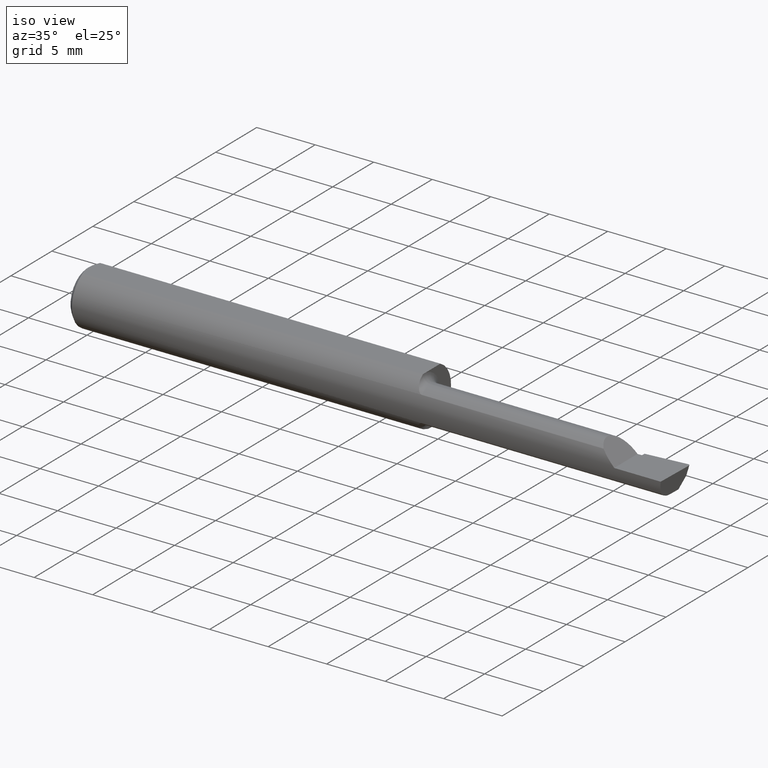
[diagram: clean part render]
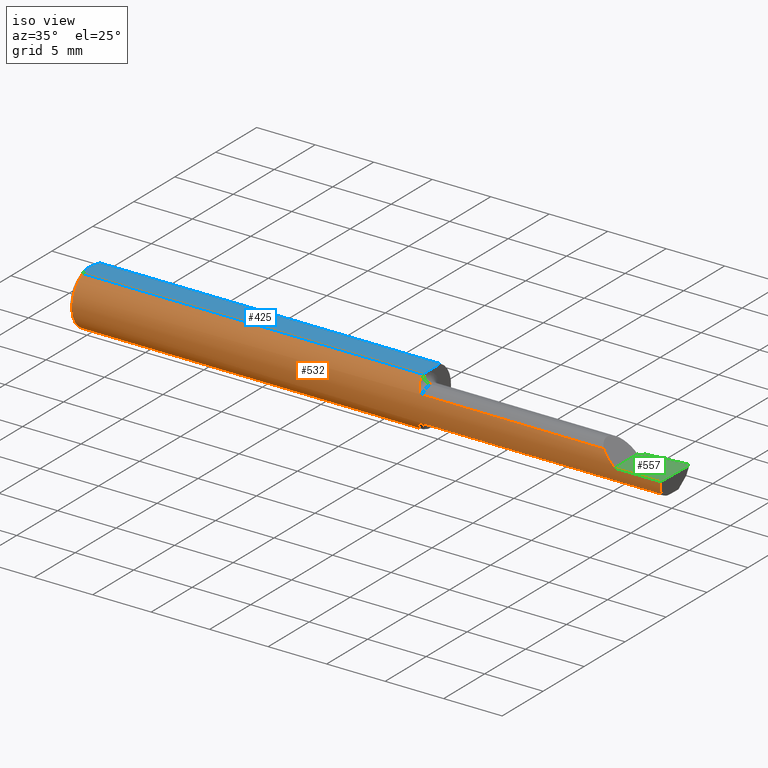
[diagram: same view with three faces highlighted in distinct colors, each labeled with its STEP entity id]
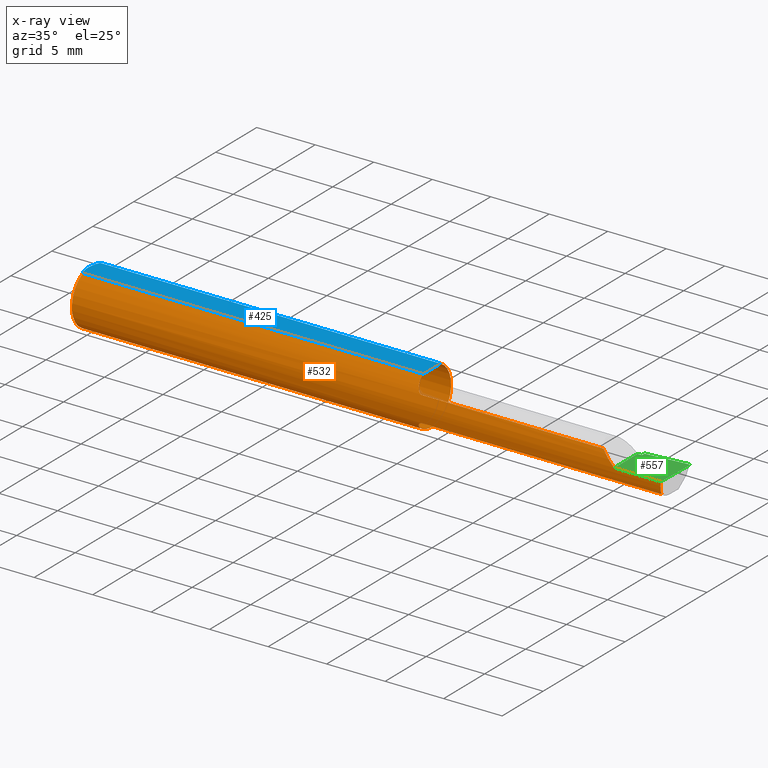
[diagram: x-ray of the same camera — body ghosted, the three highlighted faces saturated]
A machine part, iso view with three faces highlighted in distinct colors.
The next image is the same camera in x-ray (body ghosted, the three faces saturated) — at least one of them is partly hidden behind the body in this view.
Their STEP definitions:

[orange] entity #532 — the highlighted cylindrical surface (edge-blend (fillet) strip) has radius 2.3774 mm, axis along (-1, -0, -0).
#1 = CARTESIAN_POINT ( 'NONE',  ( 1.160121283746728515, -0.04659318327468391085, -0.08137765652544186323 ) ) ;
#4 = CARTESIAN_POINT ( 'NONE',  ( 1.160020127471513174, -0.04150000000000000216, -0.08389702020930184245 ) ) ;
#6 = AXIS2_PLACEMENT_3D ( 'NONE', #649, #427, #187 ) ;
#8 = ORIENTED_EDGE ( 'NONE', *, *, #477, .T. ) ;
#11 = EDGE_CURVE ( 'NONE', #172, #718, #533, .T. ) ;
#15 = CARTESIAN_POINT ( 'NONE',  ( 1.169277238843646760, -0.07518688180277835476, 0.05595855205935822835 ) ) ;
#17 = CARTESIAN_POINT ( 'NONE',  ( 1.173723886093771984, -0.07921817987516428794, 0.04991299092638442486 ) ) ;
#18 = CARTESIAN_POINT ( 'NONE',  ( 0.01499999999999999598, 0.0000000000000000000, -0.09360000000000001652 ) ) ;
#22 = CARTESIAN_POINT ( 'NONE',  ( 1.175413575230843666, -0.08042664989327168168, 0.04791921015131045403 ) ) ;
#23 = CARTESIAN_POINT ( 'NONE',  ( 1.162429122971394557, -0.06066239981301110168, 0.07149394324226560071 ) ) ;
#25 = CARTESIAN_POINT ( 'NONE',  ( 1.163721006865968688, -0.06478644025721981559, 0.06776242552087052839 ) ) ;
#27 = CARTESIAN_POINT ( 'NONE',  ( 1.167169981118042932, -0.07201923175909119568, 0.06001882546754930964 ) ) ;
#30 = VECTOR ( 'NONE', #445, 39.37007874015748143 ) ;
#44 = VECTOR ( 'NONE', #457, 39.37007874015748143 ) ;
#60 = EDGE_CURVE ( 'NONE', #284, #654, #456, .T. ) ;
#62 = DIRECTION ( 'NONE',  ( 1.000000000000000000, 0.0000000000000000000, 0.0000000000000000000 ) ) ;
#67 = CARTESIAN_POINT ( 'NONE',  ( 1.160000000000000142, -0.03946024096385560009, -0.08487549341873927566 ) ) ;
#74 = CARTESIAN_POINT ( 'NONE',  ( 5.659797890829555466E-31, -0.09359999999999998876, 1.030335658007946046E-15 ) ) ;
#91 = CARTESIAN_POINT ( 'NONE',  ( 1.991365359011875169, -0.08307469879518081246, -0.04312255117789283443 ) ) ;
#95 = DIRECTION ( 'NONE',  ( 0.0000000000000000000, 0.0000000000000000000, 1.000000000000000000 ) ) ;
#96 = LINE ( 'NONE', #200, #30 ) ;
#98 = CARTESIAN_POINT ( 'NONE',  ( 1.520000000000000240, -0.08307469879518081246, 0.04312255117789283443 ) ) ;
#99 = CARTESIAN_POINT ( 'NONE',  ( 0.01499999999999999944, -0.04209513035969835587, 0.08360000000000000764 ) ) ;
#108 = CARTESIAN_POINT ( 'NONE',  ( 1.185000000000000053, -0.08307469879518070144, -0.04312255117789289688 ) ) ;
#118 = EDGE_CURVE ( 'NONE', #231, #527, #681, .T. ) ;
#125 = CARTESIAN_POINT ( 'NONE',  ( 1.182123707331576901, -0.08307469879541805324, 0.04312255117743588051 ) ) ;
#127 = DIRECTION ( 'NONE',  ( -1.000000000000000000, -0.0000000000000000000, -0.0000000000000000000 ) ) ;
#131 = VERTEX_POINT ( 'NONE', #147 ) ;
#135 = CARTESIAN_POINT ( 'NONE',  ( 1.163605992736884476, -0.06448586599545322318, -0.06805619079784644421 ) ) ;
#136 = CARTESIAN_POINT ( 'NONE',  ( 1.992827658777091893, -0.09002356847881788637, -0.02973569812382164182 ) ) ;
#147 = CARTESIAN_POINT ( 'NONE',  ( 1.996386342823452065, -0.09360000000000009979, -6.634435288474564624E-17 ) ) ;
#154 = CARTESIAN_POINT ( 'NONE',  ( 1.182100790213033825, -0.08307469879518074307, -0.04312255117789293851 ) ) ;
#172 = VERTEX_POINT ( 'NONE', #446 ) ;
#175 = CARTESIAN_POINT ( 'NONE',  ( 1.185000000000000053, -0.08307469879518036837, 0.04312255117789319525 ) ) ;
#180 = FACE_OUTER_BOUND ( 'NONE', #433, .T. ) ;
#181 = EDGE_CURVE ( 'NONE', #729, #284, #400, .T. ) ;
#185 = CARTESIAN_POINT ( 'NONE',  ( 1.160033712670299977, -0.04209513036081732190, 0.08360000000000000764 ) ) ;
#187 = DIRECTION ( 'NONE',  ( 0.0000000000000000000, 0.0000000000000000000, -1.000000000000000000 ) ) ;
#190 = AXIS2_PLACEMENT_3D ( 'NONE', #256, #253, #193 ) ;
#193 = DIRECTION ( 'NONE',  ( 0.0000000000000000000, 0.0000000000000000000, 1.000000000000000000 ) ) ;
#196 = CARTESIAN_POINT ( 'NONE',  ( 1.167076397983111580, -0.07187891021191479546, -0.06019546731975692483 ) ) ;
#199 = CARTESIAN_POINT ( 'NONE',  ( 0.0000000000000000000, -0.04209513035969835587, 0.08360000000000000764 ) ) ;
#200 = CARTESIAN_POINT ( 'NONE',  ( 0.0000000000000000000, 0.04209513035969837669, 0.08360000000000000764 ) ) ;
#206 = CARTESIAN_POINT ( 'NONE',  ( 1.179498465877714120, -0.08233174416856384181, -0.04456779206614402966 ) ) ;
#207 = CARTESIAN_POINT ( 'NONE',  ( 1.840000000000000080, -0.09360000000000005815, 1.959434878635762025E-17 ) ) ;
#211 = ORIENTED_EDGE ( 'NONE', *, *, #388, .T. ) ;
#222 = CARTESIAN_POINT ( 'NONE',  ( 1.796877448822106649, -0.08307469879518082634, 0.04312255117789279973 ) ) ;
#231 = VERTEX_POINT ( 'NONE', #636 ) ;
#236 = CARTESIAN_POINT ( 'NONE',  ( 1.840000000000000080, -0.09360000000000005815, 1.959434878635762025E-17 ) ) ;
#253 = DIRECTION ( 'NONE',  ( -1.000000000000000000, -0.0000000000000000000, -0.0000000000000000000 ) ) ;
#256 = CARTESIAN_POINT ( 'NONE',  ( 0.0000000000000000000, 0.0000000000000000000, 0.0000000000000000000 ) ) ;
#262 = CARTESIAN_POINT ( 'NONE',  ( 1.169237437666585722, -0.07513599091569005128, -0.05602756047418846336 ) ) ;
#284 = VERTEX_POINT ( 'NONE', #687 ) ;
#302 = CARTESIAN_POINT ( 'NONE',  ( 0.01499999999999999598, 0.0000000000000000000, 0.0000000000000000000 ) ) ;
#304 = EDGE_CURVE ( 'NONE', #654, #610, #702, .T. ) ;
#307 = DIRECTION ( 'NONE',  ( -1.000000000000000000, -0.0000000000000000000, -0.0000000000000000000 ) ) ;
#311 = CARTESIAN_POINT ( 'NONE',  ( 1.160604804002113077, -0.05145819953596708629, -0.07838465384289883264 ) ) ;
#317 = CARTESIAN_POINT ( 'NONE',  ( 1.173672693420809487, -0.07917899622880043842, -0.04997532113045963925 ) ) ;
#319 = CARTESIAN_POINT ( 'NONE',  ( 0.01499999999999999598, 0.0000000000000000000, 0.0000000000000000000 ) ) ;
#323 = VERTEX_POINT ( 'NONE', #99 ) ;
#343 = EDGE_CURVE ( 'NONE', #527, #323, #578, .T. ) ;
#344 = CARTESIAN_POINT ( 'NONE',  ( 1.160163936266329632, -0.04714148439379606259, 0.08105900800344767454 ) ) ;
#359 = DIRECTION ( 'NONE',  ( -1.000000000000000000, -0.0000000000000000000, -0.0000000000000000000 ) ) ;
#363 =( BOUNDED_CURVE ( )  B_SPLINE_CURVE ( 3, ( #560, #136, #504, #591 ),
 .UNSPECIFIED., .F., .T. ) 
 B_SPLINE_CURVE_WITH_KNOTS ( ( 4, 4 ),
 ( 0.8819507499627845526, 1.360746882514780376 ),
 .UNSPECIFIED. ) 
 CURVE ( )  GEOMETRIC_REPRESENTATION_ITEM ( )  RATIONAL_B_SPLINE_CURVE ( ( 1.000000000000000000, 0.9809872534005956712, 0.9809872534005956712, 1.000000000000000000 ) ) 
 REPRESENTATION_ITEM ( '' )  );
#379 = VECTOR ( 'NONE', #62, 39.37007874015748143 ) ;
#386 = DIRECTION ( 'NONE',  ( -1.000000000000000000, -0.0000000000000000000, -0.0000000000000000000 ) ) ;
#388 = EDGE_CURVE ( 'NONE', #525, #718, #530, .T. ) ;
#389 = DIRECTION ( 'NONE',  ( 0.0000000000000000000, 0.0000000000000000000, 1.000000000000000000 ) ) ;
#397 = ORIENTED_EDGE ( 'NONE', *, *, #564, .T. ) ;
#398 = ORIENTED_EDGE ( 'NONE', *, *, #343, .F. ) ;
#400 = LINE ( 'NONE', #451, #44 ) ;
#413 = CARTESIAN_POINT ( 'NONE',  ( 1.160661035553280040, -0.05185656404764086430, 0.07811662714540883179 ) ) ;
#418 = AXIS2_PLACEMENT_3D ( 'NONE', #302, #307, #95 ) ;
#427 = DIRECTION ( 'NONE',  ( 1.000000000000000000, 0.0000000000000000000, 0.0000000000000000000 ) ) ;
#433 = EDGE_LOOP ( 'NONE', ( #475, #397, #580, #211, #442, #501, #673, #398, #539, #8, #554, #638, #617 ) ) ;
#438 = CARTESIAN_POINT ( 'NONE',  ( 1.175354605856553825, -0.08039319987159056213, -0.04797642756495511945 ) ) ;
#442 = ORIENTED_EDGE ( 'NONE', *, *, #11, .F. ) ;
#445 = DIRECTION ( 'NONE',  ( 1.000000000000000000, 0.0000000000000000000, 0.0000000000000000000 ) ) ;
#446 = CARTESIAN_POINT ( 'NONE',  ( 1.185000000000000053, -0.08307469879518036837, 0.04312255117789319525 ) ) ;
#448 = VECTOR ( 'NONE', #359, 39.37007874015748143 ) ;
#451 = CARTESIAN_POINT ( 'NONE',  ( 1.520000000000000240, -0.08307469879518081246, -0.04312255117789283443 ) ) ;
#452 = CARTESIAN_POINT ( 'NONE',  ( 1.160020127471513174, -0.04150000000000000216, -0.08389702020930184245 ) ) ;
#456 = B_SPLINE_CURVE_WITH_KNOTS ( 'NONE', 3,
 ( #108, #154, #206, #438, #317, #262, #196, #135, #521, #311, #1, #4 ),
 .UNSPECIFIED., .F., .F.,
 ( 4, 2, 2, 2, 2, 4 ),
 ( 1.963546462201886234E-07, 0.0002171101490734176048, 0.0004340239435006150535, 0.0008678515323550098966, 0.001301679121209404740, 0.001735506710063799583 ),
 .UNSPECIFIED. ) ;
#457 = DIRECTION ( 'NONE',  ( -1.000000000000000000, -0.0000000000000000000, -0.0000000000000000000 ) ) ;
#475 = ORIENTED_EDGE ( 'NONE', *, *, #181, .F. ) ;
#476 = VERTEX_POINT ( 'NONE', #716 ) ;
#477 = EDGE_CURVE ( 'NONE', #231, #476, #96, .T. ) ;
#487 = CARTESIAN_POINT ( 'NONE',  ( 1.160020127471513174, -0.04150000000000000216, -0.08389702020930184245 ) ) ;
#491 = CYLINDRICAL_SURFACE ( 'NONE', #190, 0.09360000000000001652 ) ;
#501 = ORIENTED_EDGE ( 'NONE', *, *, #592, .F. ) ;
#504 = CARTESIAN_POINT ( 'NONE',  ( 1.994533757673610408, -0.09359999999999998876, -0.01508292493422506465 ) ) ;
#518 = CARTESIAN_POINT ( 'NONE',  ( 1.160000000000000142, -0.03946024096385560009, -0.08487549341873927566 ) ) ;
#521 = CARTESIAN_POINT ( 'NONE',  ( 1.162355770679724287, -0.06040702343486030468, -0.07171535245186147489 ) ) ;
#525 = VERTEX_POINT ( 'NONE', #236 ) ;
#527 = VERTEX_POINT ( 'NONE', #18 ) ;
#529 = VECTOR ( 'NONE', #127, 39.37007874015748143 ) ;
#530 =( BOUNDED_CURVE ( )  B_SPLINE_CURVE ( 3, ( #207, #599, #725, #658 ),
 .UNSPECIFIED., .F., .T. ) 
 B_SPLINE_CURVE_WITH_KNOTS ( ( 4, 4 ),
 ( 4.712388980384689674, 5.191185112936686608 ),
 .UNSPECIFIED. ) 
 CURVE ( )  GEOMETRIC_REPRESENTATION_ITEM ( )  RATIONAL_B_SPLINE_CURVE ( ( 1.000000000000000000, 0.9809872534005956712, 0.9809872534005956712, 1.000000000000000000 ) ) 
 REPRESENTATION_ITEM ( '' )  );
#532 = ADVANCED_FACE ( 'NONE', ( #180 ), #491, .T. ) ;
#533 = LINE ( 'NONE', #98, #379 ) ;
#539 = ORIENTED_EDGE ( 'NONE', *, *, #118, .F. ) ;
#546 = CARTESIAN_POINT ( 'NONE',  ( 1.179521451227074413, -0.08233651528524262020, 0.04455777109846686956 ) ) ;
#554 = ORIENTED_EDGE ( 'NONE', *, *, #678, .F. ) ;
#560 = CARTESIAN_POINT ( 'NONE',  ( 1.991365359011875169, -0.08307469879518081246, -0.04312255117789283443 ) ) ;
#564 = EDGE_CURVE ( 'NONE', #729, #131, #363, .T. ) ;
#575 = CARTESIAN_POINT ( 'NONE',  ( 1.160000000000000142, -0.04014498638740782860, -0.08455714216888012003 ) ) ;
#578 = CIRCLE ( 'NONE', #418, 0.09360000000000001652 ) ;
#580 = ORIENTED_EDGE ( 'NONE', *, *, #651, .T. ) ;
#591 = CARTESIAN_POINT ( 'NONE',  ( 1.996386342823452065, -0.09360000000000009979, -6.634435288474564624E-17 ) ) ;
#592 = EDGE_CURVE ( 'NONE', #705, #172, #593, .T. ) ;
#593 = B_SPLINE_CURVE_WITH_KNOTS ( 'NONE', 3,
 ( #598, #344, #413, #23, #25, #27, #15, #17, #22, #546, #125, #175 ),
 .UNSPECIFIED., .F., .F.,
 ( 4, 2, 2, 2, 2, 4 ),
 ( 4.385794399157352903E-07, 0.0004249653867977901621, 0.0008494921941556646131, 0.001274019001513539010, 0.001486282405192478756, 0.001698545808871418502 ),
 .UNSPECIFIED. ) ;
#598 = CARTESIAN_POINT ( 'NONE',  ( 1.160033712670299977, -0.04209513036081732190, 0.08360000000000000764 ) ) ;
#599 = CARTESIAN_POINT ( 'NONE',  ( 1.824917075065774830, -0.09360000000000001652, 0.01508292493422499526 ) ) ;
#610 = VERTEX_POINT ( 'NONE', #67 ) ;
#617 = ORIENTED_EDGE ( 'NONE', *, *, #60, .F. ) ;
#627 = CIRCLE ( 'NONE', #6, 0.09360000000000001652 ) ;
#636 = CARTESIAN_POINT ( 'NONE',  ( 0.01499999999999999598, 0.04209513035969837669, 0.08360000000000000764 ) ) ;
#638 = ORIENTED_EDGE ( 'NONE', *, *, #304, .F. ) ;
#644 = LINE ( 'NONE', #74, #448 ) ;
#649 = CARTESIAN_POINT ( 'NONE',  ( 1.160000000000000142, 0.0000000000000000000, 0.0000000000000000000 ) ) ;
#651 = EDGE_CURVE ( 'NONE', #131, #525, #644, .T. ) ;
#654 = VERTEX_POINT ( 'NONE', #487 ) ;
#658 = CARTESIAN_POINT ( 'NONE',  ( 1.796877448822106649, -0.08307469879518082634, 0.04312255117789279973 ) ) ;
#673 = ORIENTED_EDGE ( 'NONE', *, *, #723, .T. ) ;
#678 = EDGE_CURVE ( 'NONE', #610, #476, #627, .T. ) ;
#680 = LINE ( 'NONE', #199, #529 ) ;
#681 = CIRCLE ( 'NONE', #704, 0.09360000000000001652 ) ;
#683 = CARTESIAN_POINT ( 'NONE',  ( 1.160006719116742913, -0.04082489400077272262, -0.08423096411932438909 ) ) ;
#687 = CARTESIAN_POINT ( 'NONE',  ( 1.185000000000000053, -0.08307469879518070144, -0.04312255117789289688 ) ) ;
#702 = B_SPLINE_CURVE_WITH_KNOTS ( 'NONE', 3,
 ( #452, #683, #575, #518 ),
 .UNSPECIFIED., .F., .F.,
 ( 4, 4 ),
 ( 0.001735506710063799583, 0.001793010945052101509 ),
 .UNSPECIFIED. ) ;
#704 = AXIS2_PLACEMENT_3D ( 'NONE', #319, #386, #389 ) ;
#705 = VERTEX_POINT ( 'NONE', #185 ) ;
#716 = CARTESIAN_POINT ( 'NONE',  ( 1.160000000000000142, 0.04209513035969836975, 0.08360000000000000764 ) ) ;
#718 = VERTEX_POINT ( 'NONE', #222 ) ;
#723 = EDGE_CURVE ( 'NONE', #705, #323, #680, .T. ) ;
#725 = CARTESIAN_POINT ( 'NONE',  ( 1.810264301876177928, -0.09002356847881790025, 0.02973569812382162794 ) ) ;
#729 = VERTEX_POINT ( 'NONE', #91 ) ;

[blue] entity #425 — the highlighted planar face has unit normal (0, -0, -1).
#5 = CARTESIAN_POINT ( 'NONE',  ( 0.005000000000000236026, 1.025183009042025117E-17, 0.08360000000000000764 ) ) ;
#24 = DIRECTION ( 'NONE',  ( 0.0000000000000000000, 1.000000000000000000, -1.189000693621284344E-16 ) ) ;
#30 = VECTOR ( 'NONE', #445, 39.37007874015748143 ) ;
#41 = CARTESIAN_POINT ( 'NONE',  ( 1.160033822879743992, -0.03903342675892667452, 0.08360000000000000764 ) ) ;
#46 = EDGE_CURVE ( 'NONE', #476, #238, #648, .T. ) ;
#49 = VERTEX_POINT ( 'NONE', #5 ) ;
#63 = EDGE_LOOP ( 'NONE', ( #368, #709, #679, #693, #301, #582, #646 ) ) ;
#96 = LINE ( 'NONE', #200, #30 ) ;
#99 = CARTESIAN_POINT ( 'NONE',  ( 0.01499999999999999944, -0.04209513035969835587, 0.08360000000000000764 ) ) ;
#109 = B_SPLINE_CURVE_WITH_KNOTS ( 'NONE', 3,
 ( #431, #308, #626, #570, #573, #444 ),
 .UNSPECIFIED., .F., .F.,
 ( 4, 2, 4 ),
 ( 0.005785415439423114564, 0.006333348270144337384, 0.006881281100865560205 ),
 .UNSPECIFIED. ) ;
#114 = CARTESIAN_POINT ( 'NONE',  ( 1.160033822879743992, -0.04150000000000000216, 0.08360000000000000764 ) ) ;
#115 = EDGE_CURVE ( 'NONE', #49, #231, #531, .T. ) ;
#127 = DIRECTION ( 'NONE',  ( -1.000000000000000000, -0.0000000000000000000, -0.0000000000000000000 ) ) ;
#148 = EDGE_CURVE ( 'NONE', #323, #49, #109, .T. ) ;
#163 = CARTESIAN_POINT ( 'NONE',  ( 0.005000000000000223883, 0.007308422719211823959, 0.08360000000000000764 ) ) ;
#169 = CARTESIAN_POINT ( 'NONE',  ( 0.005000000000000236026, 1.025183009042025117E-17, 0.08360000000000000764 ) ) ;
#185 = CARTESIAN_POINT ( 'NONE',  ( 1.160033712670299977, -0.04209513036081732190, 0.08360000000000000764 ) ) ;
#199 = CARTESIAN_POINT ( 'NONE',  ( 0.0000000000000000000, -0.04209513035969835587, 0.08360000000000000764 ) ) ;
#200 = CARTESIAN_POINT ( 'NONE',  ( 0.0000000000000000000, 0.04209513035969837669, 0.08360000000000000764 ) ) ;
#201 = CARTESIAN_POINT ( 'NONE',  ( 0.005981829149300850468, 0.01454044632356567279, 0.08360000000000000764 ) ) ;
#204 = CARTESIAN_POINT ( 'NONE',  ( 0.009492654797564337166, 0.02859466010166625619, 0.08359999999999997988 ) ) ;
#208 = CARTESIAN_POINT ( 'NONE',  ( 0.01203648650249650523, 0.03550565407121123590, 0.08360000000000000764 ) ) ;
#213 = CARTESIAN_POINT ( 'NONE',  ( 0.01499999999999999598, 0.04209513035969837669, 0.08360000000000000764 ) ) ;
#217 = DIRECTION ( 'NONE',  ( 0.0000000000000000000, -1.000000000000000000, 1.189000693621284344E-16 ) ) ;
#231 = VERTEX_POINT ( 'NONE', #636 ) ;
#238 = VERTEX_POINT ( 'NONE', #331 ) ;
#241 = DIRECTION ( 'NONE',  ( 0.0000000000000000000, -1.189000693621284344E-16, -1.000000000000000000 ) ) ;
#247 = CARTESIAN_POINT ( 'NONE',  ( 1.160000000000000142, 0.1436000000000000332, 0.08359999999999999376 ) ) ;
#254 = EDGE_CURVE ( 'NONE', #689, #705, #583, .T. ) ;
#260 = CARTESIAN_POINT ( 'NONE',  ( 1.160033804492674347, -0.04179756391388078640, 0.08360000000000000764 ) ) ;
#261 = B_SPLINE_CURVE_WITH_KNOTS ( 'NONE', 3,
 ( #568, #544, #511, #602, #41, #426 ),
 .UNSPECIFIED., .F., .F.,
 ( 4, 2, 4 ),
 ( 0.0007618363005527917491, 0.0009495817850258247419, 0.001137327269498857735 ),
 .UNSPECIFIED. ) ;
#287 = CARTESIAN_POINT ( 'NONE',  ( 2.000000000000000000, 0.1436000000000000332, 0.08359999999999999376 ) ) ;
#301 = ORIENTED_EDGE ( 'NONE', *, *, #148, .F. ) ;
#303 = CARTESIAN_POINT ( 'NONE',  ( 1.160033822879743992, -0.04159918775988086237, 0.08360000000000000764 ) ) ;
#308 = CARTESIAN_POINT ( 'NONE',  ( 0.01206089165507025739, -0.03555991978469312531, 0.08360000000000000764 ) ) ;
#323 = VERTEX_POINT ( 'NONE', #99 ) ;
#331 = CARTESIAN_POINT ( 'NONE',  ( 1.160000000000000142, -0.02669966216601849310, 0.08360000000000000764 ) ) ;
#368 = ORIENTED_EDGE ( 'NONE', *, *, #453, .F. ) ;
#402 = AXIS2_PLACEMENT_3D ( 'NONE', #287, #241, #24 ) ;
#425 = ADVANCED_FACE ( 'NONE', ( #645 ), #655, .F. ) ;
#426 = CARTESIAN_POINT ( 'NONE',  ( 1.160033822879743992, -0.04150000000000000216, 0.08360000000000000764 ) ) ;
#431 = CARTESIAN_POINT ( 'NONE',  ( 0.01499999999999999944, -0.04209513035969835587, 0.08360000000000000764 ) ) ;
#444 = CARTESIAN_POINT ( 'NONE',  ( 0.005000000000000236026, 1.025183009042025117E-17, 0.08360000000000000764 ) ) ;
#445 = DIRECTION ( 'NONE',  ( 1.000000000000000000, 0.0000000000000000000, 0.0000000000000000000 ) ) ;
#449 = CARTESIAN_POINT ( 'NONE',  ( 1.160033822879743992, -0.04150000000000000216, 0.08360000000000000764 ) ) ;
#453 = EDGE_CURVE ( 'NONE', #238, #689, #261, .T. ) ;
#476 = VERTEX_POINT ( 'NONE', #716 ) ;
#477 = EDGE_CURVE ( 'NONE', #231, #476, #96, .T. ) ;
#511 = CARTESIAN_POINT ( 'NONE',  ( 1.160010473476444259, -0.03163306423249848121, 0.08360000000000000764 ) ) ;
#529 = VECTOR ( 'NONE', #127, 39.37007874015748143 ) ;
#531 = B_SPLINE_CURVE_WITH_KNOTS ( 'NONE', 3,
 ( #169, #163, #201, #204, #208, #213 ),
 .UNSPECIFIED., .F., .F.,
 ( 4, 2, 4 ),
 ( 0.006881281100865560205, 0.007427683811376459971, 0.007974086521887359738 ),
 .UNSPECIFIED. ) ;
#544 = CARTESIAN_POINT ( 'NONE',  ( 1.159999999999999920, -0.02916612216505935426, 0.08360000000000000764 ) ) ;
#568 = CARTESIAN_POINT ( 'NONE',  ( 1.160000000000000142, -0.02669966216601849310, 0.08360000000000000764 ) ) ;
#570 = CARTESIAN_POINT ( 'NONE',  ( 0.005975039161239525769, -0.01453776427033148279, 0.08359999999999997988 ) ) ;
#573 = CARTESIAN_POINT ( 'NONE',  ( 0.005000000000000228220, -0.007328888879231052964, 0.08360000000000000764 ) ) ;
#582 = ORIENTED_EDGE ( 'NONE', *, *, #723, .F. ) ;
#583 = B_SPLINE_CURVE_WITH_KNOTS ( 'NONE', 3,
 ( #449, #303, #260, #613, #726 ),
 .UNSPECIFIED., .F., .F.,
 ( 4, 1, 4 ),
 ( 0.001137327269498857735, 0.001144877036812689923, 0.001152426804126521894 ),
 .UNSPECIFIED. ) ;
#602 = CARTESIAN_POINT ( 'NONE',  ( 1.160027419345087463, -0.03656676420729543242, 0.08359999999999997988 ) ) ;
#613 = CARTESIAN_POINT ( 'NONE',  ( 1.160033749376515377, -0.04199594133480310382, 0.08360000000000003539 ) ) ;
#626 = CARTESIAN_POINT ( 'NONE',  ( 0.009539353699420832430, -0.02875682547511371895, 0.08360000000000000764 ) ) ;
#636 = CARTESIAN_POINT ( 'NONE',  ( 0.01499999999999999598, 0.04209513035969837669, 0.08360000000000000764 ) ) ;
#645 = FACE_OUTER_BOUND ( 'NONE', #63, .T. ) ;
#646 = ORIENTED_EDGE ( 'NONE', *, *, #254, .F. ) ;
#648 = LINE ( 'NONE', #247, #667 ) ;
#655 = PLANE ( 'NONE',  #402 ) ;
#667 = VECTOR ( 'NONE', #217, 39.37007874015748143 ) ;
#679 = ORIENTED_EDGE ( 'NONE', *, *, #477, .F. ) ;
#680 = LINE ( 'NONE', #199, #529 ) ;
#689 = VERTEX_POINT ( 'NONE', #114 ) ;
#693 = ORIENTED_EDGE ( 'NONE', *, *, #115, .F. ) ;
#705 = VERTEX_POINT ( 'NONE', #185 ) ;
#709 = ORIENTED_EDGE ( 'NONE', *, *, #46, .F. ) ;
#716 = CARTESIAN_POINT ( 'NONE',  ( 1.160000000000000142, 0.04209513035969836975, 0.08360000000000000764 ) ) ;
#723 = EDGE_CURVE ( 'NONE', #705, #323, #680, .T. ) ;
#726 = CARTESIAN_POINT ( 'NONE',  ( 1.160033712670299977, -0.04209513036081732190, 0.08360000000000000764 ) ) ;

[green] entity #557 — the highlighted planar face has unit normal (-0, 0, -1).
#10 = ORIENTED_EDGE ( 'NONE', *, *, #156, .F. ) ;
#33 = PLANE ( 'NONE',  #383 ) ;
#37 = CARTESIAN_POINT ( 'NONE',  ( 1.992906680581892465, 0.04371699102466924253, -6.439972649628884200E-17 ) ) ;
#50 = VERTEX_POINT ( 'NONE', #167 ) ;
#53 = CARTESIAN_POINT ( 'NONE',  ( 1.993512870449313912, 0.04374616680637214566, -7.256471233170699482E-17 ) ) ;
#55 = CARTESIAN_POINT ( 'NONE',  ( 1.993108609909222784, 0.04373643460740115479, -6.821681774272507613E-17 ) ) ;
#58 = ORIENTED_EDGE ( 'NONE', *, *, #435, .F. ) ;
#74 = CARTESIAN_POINT ( 'NONE',  ( 5.659797890829555466E-31, -0.09359999999999998876, 1.030335658007946046E-15 ) ) ;
#75 = VERTEX_POINT ( 'NONE', #37 ) ;
#79 = VECTOR ( 'NONE', #516, 39.37007874015748143 ) ;
#97 = LINE ( 'NONE', #370, #79 ) ;
#101 = CARTESIAN_POINT ( 'NONE',  ( 1.993310817358676212, 0.04374616680637213179, -6.832789351565719796E-17 ) ) ;
#117 = VERTEX_POINT ( 'NONE', #619 ) ;
#131 = VERTEX_POINT ( 'NONE', #147 ) ;
#147 = CARTESIAN_POINT ( 'NONE',  ( 1.996386342823452065, -0.09360000000000009979, -6.634435288474564624E-17 ) ) ;
#149 = FACE_OUTER_BOUND ( 'NONE', #699, .T. ) ;
#156 = EDGE_CURVE ( 'NONE', #117, #75, #97, .T. ) ;
#167 = CARTESIAN_POINT ( 'NONE',  ( 1.840000000000000080, 0.01839999999999986438, 1.959434878635762025E-17 ) ) ;
#174 = ORIENTED_EDGE ( 'NONE', *, *, #291, .T. ) ;
#184 = ORIENTED_EDGE ( 'NONE', *, *, #267, .F. ) ;
#189 =( BOUNDED_CURVE ( )  B_SPLINE_CURVE ( 3, ( #357, #292, #423, #378 ),
 .UNSPECIFIED., .F., .T. ) 
 B_SPLINE_CURVE_WITH_KNOTS ( ( 4, 4 ),
 ( 1.953092279228458183, 3.511516179717707686 ),
 .UNSPECIFIED. ) 
 CURVE ( )  GEOMETRIC_REPRESENTATION_ITEM ( )  RATIONAL_B_SPLINE_CURVE ( ( 1.000000000000000000, 0.8076450242550429204, 0.8076450242550429204, 1.000000000000000000 ) ) 
 REPRESENTATION_ITEM ( '' )  );
#214 = CARTESIAN_POINT ( 'NONE',  ( 1.992906680581892465, 0.04371699102466924253, -6.439972649628884200E-17 ) ) ;
#224 = EDGE_CURVE ( 'NONE', #50, #440, #724, .T. ) ;
#236 = CARTESIAN_POINT ( 'NONE',  ( 1.840000000000000080, -0.09360000000000005815, 1.959434878635762025E-17 ) ) ;
#259 = LINE ( 'NONE', #454, #422 ) ;
#263 = LINE ( 'NONE', #721, #298 ) ;
#265 = DIRECTION ( 'NONE',  ( 0.0000000000000000000, 1.000000000000000000, 0.0000000000000000000 ) ) ;
#267 = EDGE_CURVE ( 'NONE', #440, #117, #263, .T. ) ;
#268 = VECTOR ( 'NONE', #677, 39.37007874015748143 ) ;
#285 = ORIENTED_EDGE ( 'NONE', *, *, #375, .T. ) ;
#286 = VERTEX_POINT ( 'NONE', #53 ) ;
#291 = EDGE_CURVE ( 'NONE', #131, #393, #259, .T. ) ;
#292 = CARTESIAN_POINT ( 'NONE',  ( 1.999910038027503445, 0.04096449087509793779, -7.195295054753366378E-17 ) ) ;
#298 = VECTOR ( 'NONE', #265, 39.37007874015748143 ) ;
#321 = CARTESIAN_POINT ( 'NONE',  ( 1.993512870449313912, 0.04374616680637214566, -7.256471233170699482E-17 ) ) ;
#329 = EDGE_CURVE ( 'NONE', #286, #75, #634, .T. ) ;
#339 = ORIENTED_EDGE ( 'NONE', *, *, #651, .F. ) ;
#352 = DIRECTION ( 'NONE',  ( -1.000000000000000000, 0.0000000000000000000, 5.493159289247764363E-16 ) ) ;
#357 = CARTESIAN_POINT ( 'NONE',  ( 1.999806390372779408, 0.03700634663142104291, -6.825079363098306848E-17 ) ) ;
#359 = DIRECTION ( 'NONE',  ( -1.000000000000000000, -0.0000000000000000000, -0.0000000000000000000 ) ) ;
#370 = CARTESIAN_POINT ( 'NONE',  ( 1.107894390816139163, -0.04150000000000000216, 4.217516215662293437E-16 ) ) ;
#372 = LINE ( 'NONE', #507, #660 ) ;
#375 = EDGE_CURVE ( 'NONE', #393, #286, #189, .T. ) ;
#378 = CARTESIAN_POINT ( 'NONE',  ( 1.993512870449313912, 0.04374616680637214566, -7.256471233170699482E-17 ) ) ;
#383 = AXIS2_PLACEMENT_3D ( 'NONE', #713, #408, #352 ) ;
#387 = DIRECTION ( 'NONE',  ( 0.02617694830786383708, 0.9996573249755575929, -1.459184416195596623E-17 ) ) ;
#393 = VERTEX_POINT ( 'NONE', #625 ) ;
#408 = DIRECTION ( 'NONE',  ( -5.493159289247764363E-16, 0.0000000000000000000, -1.000000000000000000 ) ) ;
#416 = ORIENTED_EDGE ( 'NONE', *, *, #224, .F. ) ;
#421 = DIRECTION ( 'NONE',  ( -0.0000000000000000000, 1.000000000000000000, -0.0000000000000000000 ) ) ;
#422 = VECTOR ( 'NONE', #387, 39.37007874015748854 ) ;
#423 = CARTESIAN_POINT ( 'NONE',  ( 1.997312560284823624, 0.04374616680637224281, -7.052611464845214313E-17 ) ) ;
#435 = EDGE_CURVE ( 'NONE', #525, #50, #372, .T. ) ;
#440 = VERTEX_POINT ( 'NONE', #542 ) ;
#448 = VECTOR ( 'NONE', #359, 39.37007874015748143 ) ;
#454 = CARTESIAN_POINT ( 'NONE',  ( 1.992296147241039872, -0.2497982675158734178, -6.406435080701881225E-17 ) ) ;
#465 = CARTESIAN_POINT ( 'NONE',  ( 5.659797890829555466E-31, 0.01839999999999994765, 1.030335658007946046E-15 ) ) ;
#507 = CARTESIAN_POINT ( 'NONE',  ( 1.840000000000000080, -0.2500000000000000555, 1.959434878635762025E-17 ) ) ;
#516 = DIRECTION ( 'NONE',  ( 0.9953961983671787417, 0.09584575252022466130, -5.467869873542577569E-16 ) ) ;
#525 = VERTEX_POINT ( 'NONE', #236 ) ;
#542 = CARTESIAN_POINT ( 'NONE',  ( 1.854999999999999982, 0.01839999999999999969, 1.030335658007946834E-15 ) ) ;
#557 = ADVANCED_FACE ( 'NONE', ( #149 ), #33, .F. ) ;
#619 = CARTESIAN_POINT ( 'NONE',  ( 1.854999999999999982, 0.03043808801135919340, 1.030335791302337039E-15 ) ) ;
#625 = CARTESIAN_POINT ( 'NONE',  ( 1.999806390372779408, 0.03700634663142104291, -6.825079363098306848E-17 ) ) ;
#634 =( BOUNDED_CURVE ( )  B_SPLINE_CURVE ( 3, ( #321, #101, #55, #214 ),
 .UNSPECIFIED., .F., .T. ) 
 B_SPLINE_CURVE_WITH_KNOTS ( ( 4, 4 ),
 ( 3.511516179717707686, 3.604018710826265348 ),
 .UNSPECIFIED. ) 
 CURVE ( )  GEOMETRIC_REPRESENTATION_ITEM ( )  RATIONAL_B_SPLINE_CURVE ( ( 1.000000000000000000, 0.9992870672494014173, 0.9992870672494014173, 1.000000000000000000 ) ) 
 REPRESENTATION_ITEM ( '' )  );
#644 = LINE ( 'NONE', #74, #448 ) ;
#651 = EDGE_CURVE ( 'NONE', #131, #525, #644, .T. ) ;
#660 = VECTOR ( 'NONE', #421, 39.37007874015748143 ) ;
#677 = DIRECTION ( 'NONE',  ( 1.000000000000000000, 0.0000000000000000000, 0.0000000000000000000 ) ) ;
#699 = EDGE_LOOP ( 'NONE', ( #174, #285, #728, #10, #184, #416, #58, #339 ) ) ;
#713 = CARTESIAN_POINT ( 'NONE',  ( 2.000000000000000000, -0.2500000000000000555, -6.829619984160658046E-17 ) ) ;
#721 = CARTESIAN_POINT ( 'NONE',  ( 1.854999999999999982, -0.2500000000000000555, 1.135460985248596835E-17 ) ) ;
#724 = LINE ( 'NONE', #465, #268 ) ;
#728 = ORIENTED_EDGE ( 'NONE', *, *, #329, .T. ) ;